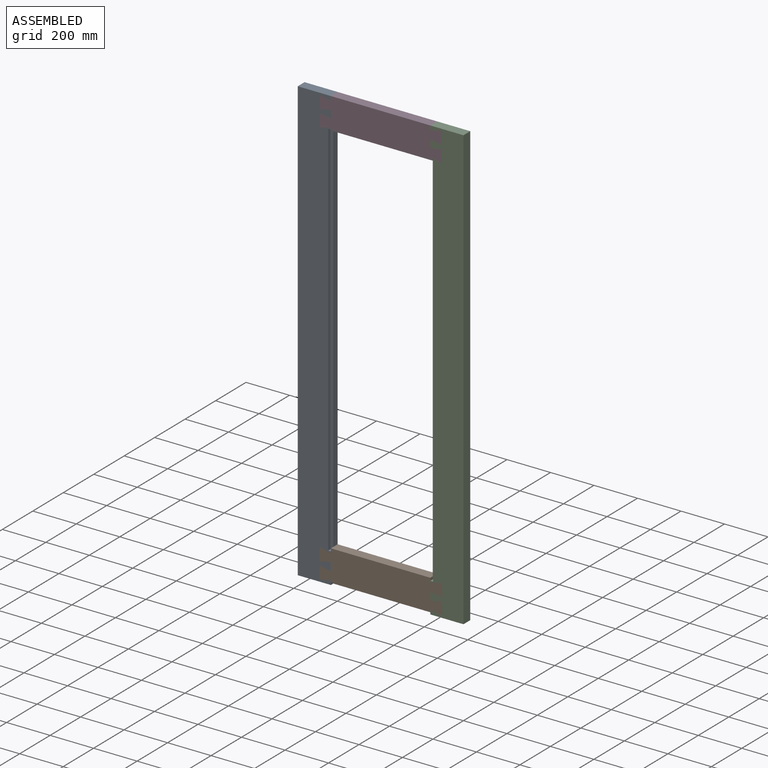
[diagram: assembled view]
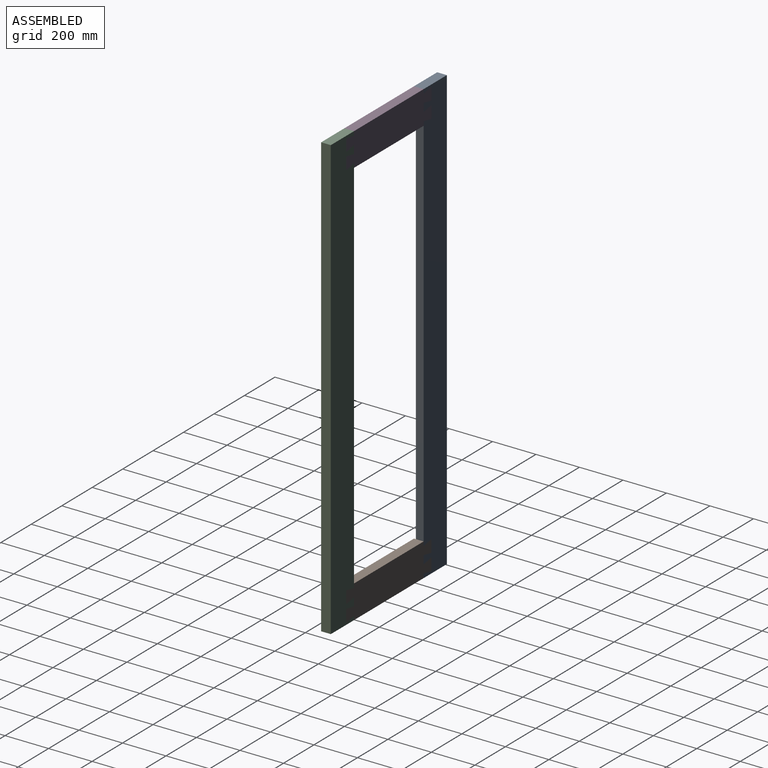
[diagram: assembled view, second angle]
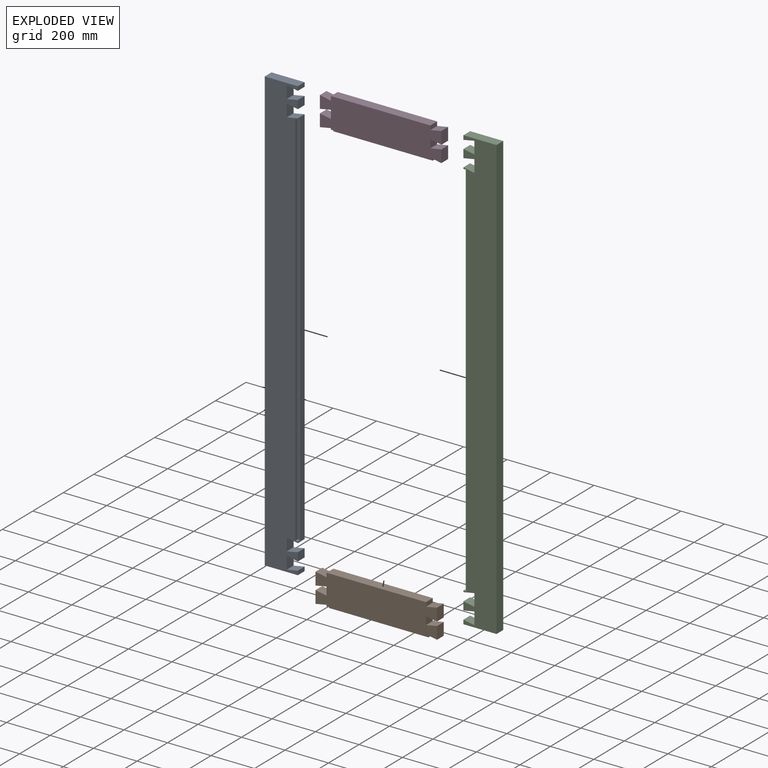
[diagram: exploded view]
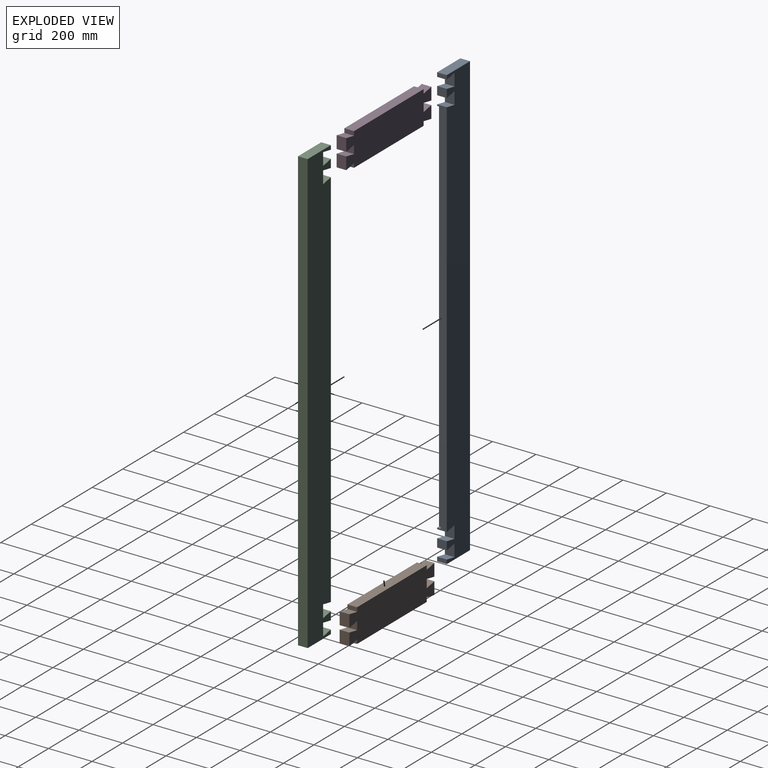
[diagram: exploded view, second angle]
ASSEMBLY  parts=4 mates=5
PART A: 26 faces, bbox 152.4x44.5x2032 mm
  f0: plane 1765.3x44.45mm, normal (1,0,0), area 50645.1mm2, adj f8,f9,f12,f19,f22,f24,f25
  f1: plane 44.45x38.1mm, normal (1,0,0), area 1693.5mm2, adj f8,f9,f16,f21
  f2: plane 44.45x19.05mm, normal (1,0,0), area 846.8mm2, adj f7,f8,f9,f18
  f3: plane 44.45x38.1mm, normal (1,0,0), area 1693.5mm2, adj f8,f9,f10,f13
  f4: plane 44.45x19.05mm, normal (1,0,0), area 846.8mm2, adj f5,f8,f9,f14
  f5: plane 152.4x44.45mm, normal (0,0,1), area 6774.2mm2, adj f4,f6,f8,f9
  f6: plane 2032x44.45mm, normal (-1,0,0), area 90322.4mm2, adj f5,f7,f8,f9
  f7: plane 152.4x44.45mm, normal (0,0,-1), area 6774.2mm2, adj f2,f6,f8,f9
  f8: plane 2032x152.4mm, normal (0,-1,0), area 277741.4mm2, adj f0,f1,f2,f3,f4,f5,f6,f7
  f9: plane 2032x152.4mm, normal (0,1,0), area 299999.4mm2, adj f0,f1,f2,f3,f4,f5,f6,f7
  f10: plane 50.8x44.45mm, normal (-0.18,0,-0.98), area 2297.4mm2, adj f3,f8,f9,f11
  f11: plane 57.15x44.45mm, normal (1,0,0), area 2540.3mm2, adj f8,f9,f10,f12
  f12: plane 50.8x44.45mm, normal (-0.18,0,0.98), area 2297.4mm2, adj f0,f8,f9,f11
  f13: plane 50.8x44.45mm, normal (-0.18,0,0.98), area 2297.4mm2, adj f3,f8,f9,f15
  f14: plane 50.8x44.45mm, normal (-0.18,0,-0.98), area 2297.4mm2, adj f4,f8,f9,f15
  f15: plane 57.15x44.45mm, normal (1,0,0), area 2540.3mm2, adj f8,f9,f13,f14
  f16: plane 50.8x44.45mm, normal (-0.18,0,-0.98), area 2297.4mm2, adj f1,f8,f9,f17
  f17: plane 57.15x44.45mm, normal (1,0,0), area 2540.3mm2, adj f8,f9,f16,f18
  f18: plane 50.8x44.45mm, normal (-0.18,0,0.98), area 2297.4mm2, adj f2,f8,f9,f17
  f19: plane 50.8x44.45mm, normal (-0.18,0,-0.98), area 2297.4mm2, adj f0,f8,f9,f20
  f20: plane 57.15x44.45mm, normal (1,0,0), area 2540.3mm2, adj f8,f9,f19,f21
  f21: plane 50.8x44.45mm, normal (-0.18,0,0.98), area 2297.4mm2, adj f1,f8,f9,f20
  f22: plane 15.88x12.7mm, normal (0,0,-1), area 201.6mm2, adj f0,f8,f23,f25
  f23: plane 1752.6x15.88mm, normal (1,0,0), area 27822.5mm2, adj f8,f22,f24,f25
  f24: plane 15.88x12.7mm, normal (0,0,1), area 201.6mm2, adj f0,f8,f23,f25
  f25: plane 1752.6x12.7mm, normal (0,-1,0), area 22258mm2, adj f0,f22,f23,f24
PART B: 24 faces, bbox 558.8x44.5x152.4 mm
  f0: plane 44.45x19.05mm, normal (1,0,0), area 645.2mm2, adj f1,f2,f20,f21,f22,f23
  f1: plane 457.2x28.58mm, normal (0,0,-1), area 13064.5mm2, adj f0,f19,f21,f23
  f2: plane 50.8x44.45mm, normal (-0.18,0,-0.98), area 2297.4mm2, adj f0,f3,f20,f21
  f3: plane 57.15x44.45mm, normal (1,0,0), area 2540.3mm2, adj f2,f4,f20,f21
  f4: plane 50.8x44.45mm, normal (-0.18,0,0.98), area 2297.4mm2, adj f3,f5,f20,f21
  f5: plane 44.45x38.1mm, normal (1,0,0), area 1693.5mm2, adj f4,f6,f20,f21
  f6: plane 50.8x44.45mm, normal (-0.18,0,-0.98), area 2297.4mm2, adj f5,f7,f20,f21
  f7: plane 57.15x44.45mm, normal (1,0,0), area 2540.3mm2, adj f6,f8,f20,f21
  f8: plane 50.8x44.45mm, normal (-0.18,0,0.98), area 2297.4mm2, adj f7,f9,f20,f21
  f9: plane 44.45x19.05mm, normal (1,0,0), area 846.8mm2, adj f8,f10,f20,f21
  f10: plane 457.2x44.45mm, normal (0,0,1), area 20322.5mm2, adj f9,f11,f20,f21
  f11: plane 44.45x19.05mm, normal (-1,0,0), area 846.8mm2, adj f10,f12,f20,f21
  f12: plane 50.8x44.45mm, normal (0.18,0,0.98), area 2297.4mm2, adj f11,f13,f20,f21
  f13: plane 57.15x44.45mm, normal (-1,0,0), area 2540.3mm2, adj f12,f14,f20,f21
  f14: plane 50.8x44.45mm, normal (0.18,0,-0.98), area 2297.4mm2, adj f13,f15,f20,f21
  f15: plane 44.45x38.1mm, normal (-1,0,0), area 1693.5mm2, adj f14,f16,f20,f21
  f16: plane 50.8x44.45mm, normal (0.18,0,0.98), area 2297.4mm2, adj f15,f17,f20,f21
  f17: plane 57.15x44.45mm, normal (-1,0,0), area 2540.3mm2, adj f16,f18,f20,f21
  f18: plane 50.8x44.45mm, normal (0.18,0,-0.98), area 2297.4mm2, adj f17,f19,f20,f21
  f19: plane 44.45x19.05mm, normal (-1,0,0), area 645.2mm2, adj f1,f18,f20,f21,f22,f23
  f20: plane 558.8x142.88mm, normal (0,-1,0), area 73548.2mm2, adj f0,f2,f3,f4,f5,f6,f7,f8
  f21: plane 558.8x152.4mm, normal (0,1,0), area 79354.7mm2, adj f0,f1,f2,f3,f4,f5,f6,f7
  f22: plane 457.2x15.88mm, normal (0,0,-1), area 7258.1mm2, adj f0,f19,f20,f23
  f23: plane 457.2x12.7mm, normal (0,-1,0), area 5806.4mm2, adj f0,f1,f19,f22
PART C: same geometry as A
PART D: same geometry as B
PLACE A t=(176.78,-158.58,-85.52)mm
PLACE B t=(481.58,-158.58,-1025.32)mm
PLACE C rot(axis=(0,-1,0),180deg) t=(786.38,-158.58,-85.52)mm
PLACE D t=(481.58,-158.58,854.28)mm
MATE planar D.f7 <-> C.f17  axis (1,0,0) through (760.98,-180.8,892.38)mm
MATE planar D.f4 <-> C.f21  axis (-0.18,0,0.98) through (735.58,-180.8,839.99)mm
MATE planar D.f17 <-> A.f11  axis (-1,0,0) through (202.18,-180.8,816.18)mm
MATE planar B.f2 <-> C.f14  axis (-0.18,0,-0.98) through (735.58,-180.8,-1087.23)mm
MATE planar D.f18 <-> A.f12  axis (0.18,0,-0.98) through (227.58,-180.8,792.37)mm
